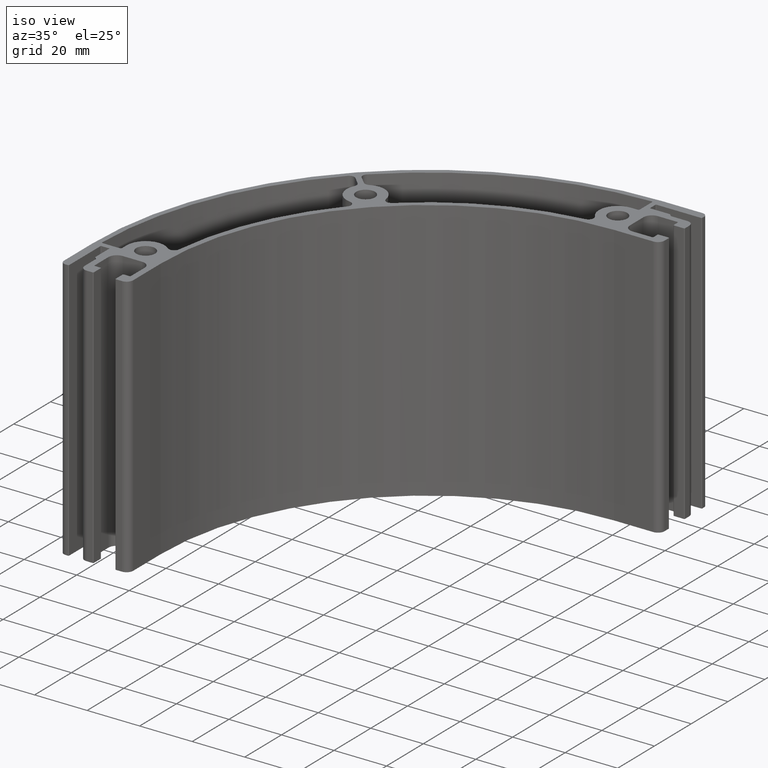
[diagram: clean part render]
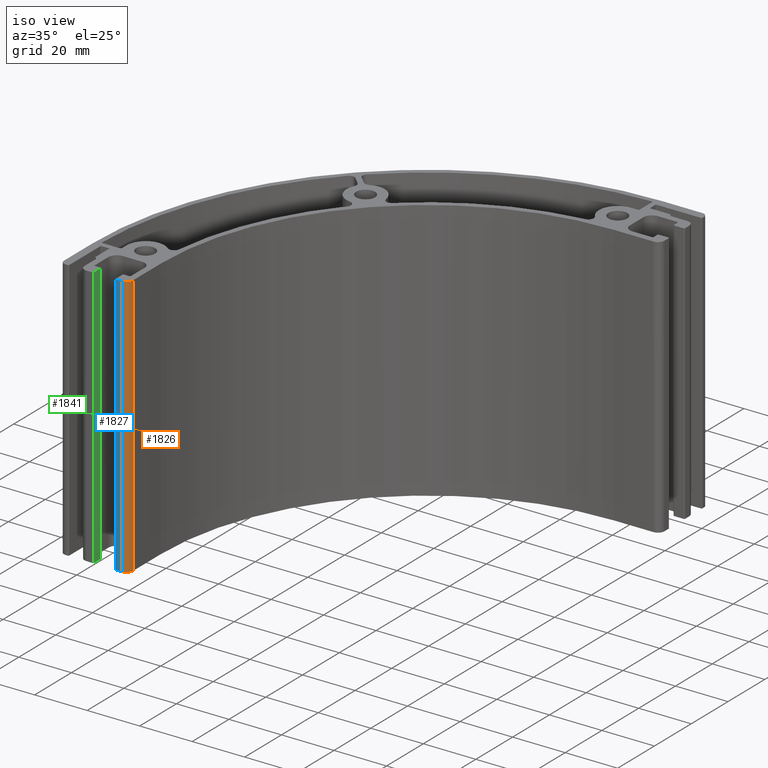
[diagram: same view with three faces highlighted in distinct colors, each labeled with its STEP entity id]
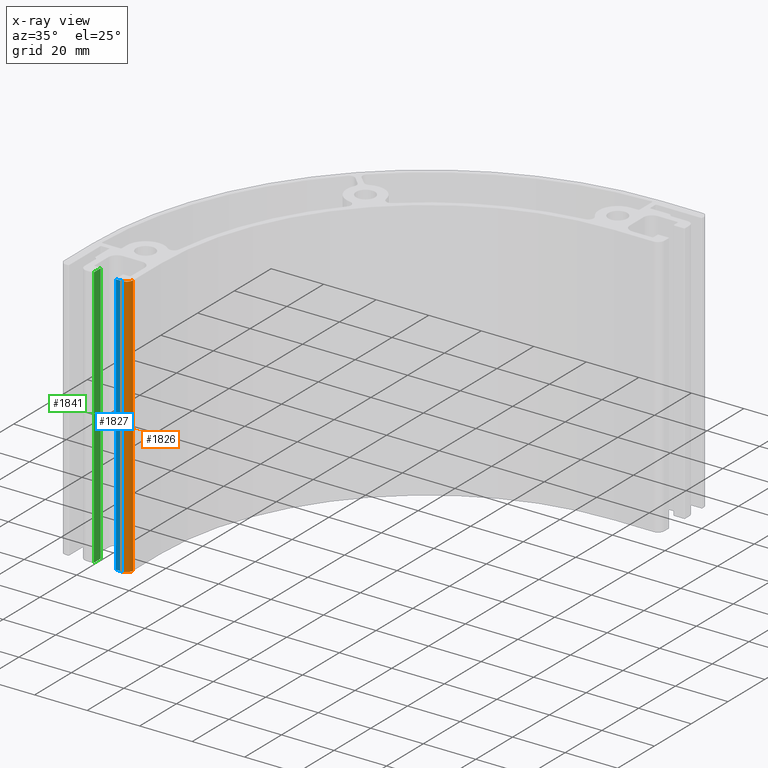
[diagram: x-ray of the same camera — body ghosted, the three highlighted faces saturated]
A machine part, iso view with three faces highlighted in distinct colors.
The next image is the same camera in x-ray (body ghosted, the three faces saturated) — at least one of them is partly hidden behind the body in this view.
Their STEP definitions:

[orange] entity #1826 — the highlighted cylindrical surface (edge-blend (fillet) strip) has radius 2.5 mm, axis along (0, 0, 1).
#98=FACE_OUTER_BOUND('',#193,.T.);
#193=EDGE_LOOP('',(#1308,#1309,#1310,#1311));
#312=LINE('',#2877,#485);
#313=LINE('',#2883,#486);
#485=VECTOR('',#2316,10.);
#486=VECTOR('',#2323,10.);
#661=CIRCLE('',#1990,2.5);
#662=CIRCLE('',#1991,2.5);
#781=VERTEX_POINT('',#2873);
#782=VERTEX_POINT('',#2875);
#783=VERTEX_POINT('',#2879);
#784=VERTEX_POINT('',#2881);
#998=EDGE_CURVE('',#781,#782,#312,.T.);
#999=EDGE_CURVE('',#783,#781,#661,.T.);
#1000=EDGE_CURVE('',#784,#782,#662,.T.);
#1001=EDGE_CURVE('',#783,#784,#313,.T.);
#1308=ORIENTED_EDGE('',*,*,#999,.T.);
#1309=ORIENTED_EDGE('',*,*,#998,.T.);
#1310=ORIENTED_EDGE('',*,*,#1000,.F.);
#1311=ORIENTED_EDGE('',*,*,#1001,.F.);
#1766=CYLINDRICAL_SURFACE('',#1989,2.5);
#1826=ADVANCED_FACE('',(#98),#1766,.T.);
#1989=AXIS2_PLACEMENT_3D('',#2878,#2317,#2318);
#1990=AXIS2_PLACEMENT_3D('',#2880,#2319,#2320);
#1991=AXIS2_PLACEMENT_3D('',#2882,#2321,#2322);
#2316=DIRECTION('',(0.,0.,1.));
#2317=DIRECTION('center_axis',(0.,0.,1.));
#2318=DIRECTION('ref_axis',(0.,-1.,0.));
#2319=DIRECTION('center_axis',(0.,0.,1.));
#2320=DIRECTION('ref_axis',(0.,-1.,0.));
#2321=DIRECTION('center_axis',(0.,0.,1.));
#2322=DIRECTION('ref_axis',(0.,-1.,0.));
#2323=DIRECTION('',(0.,0.,1.));
#2873=CARTESIAN_POINT('',(-23.1081557175748,-93.3918442824252,0.));
#2875=CARTESIAN_POINT('',(-23.1081557175748,-93.3918442824252,100.));
#2877=CARTESIAN_POINT('',(-23.1081557175748,-93.3918442824252,0.));
#2878=CARTESIAN_POINT('Origin',(-25.6081557175748,-93.3918442824252,0.));
#2879=CARTESIAN_POINT('',(-25.6081557175748,-95.8918442824252,0.));
#2880=CARTESIAN_POINT('Origin',(-25.6081557175748,-93.3918442824252,0.));
#2881=CARTESIAN_POINT('',(-25.6081557175748,-95.8918442824252,100.));
#2882=CARTESIAN_POINT('Origin',(-25.6081557175748,-93.3918442824252,100.));
#2883=CARTESIAN_POINT('',(-25.6081557175748,-95.8918442824252,0.));

[blue] entity #1827 — the highlighted planar face has unit normal (0, -1, 0).
#32=PLANE('',#1992);
#99=FACE_OUTER_BOUND('',#194,.T.);
#194=EDGE_LOOP('',(#1312,#1313,#1314,#1315));
#313=LINE('',#2883,#486);
#314=LINE('',#2886,#487);
#315=LINE('',#2888,#488);
#316=LINE('',#2889,#489);
#486=VECTOR('',#2323,10.);
#487=VECTOR('',#2326,10.);
#488=VECTOR('',#2327,10.);
#489=VECTOR('',#2328,10.);
#783=VERTEX_POINT('',#2879);
#784=VERTEX_POINT('',#2881);
#785=VERTEX_POINT('',#2885);
#786=VERTEX_POINT('',#2887);
#1001=EDGE_CURVE('',#783,#784,#313,.T.);
#1002=EDGE_CURVE('',#785,#783,#314,.T.);
#1003=EDGE_CURVE('',#786,#784,#315,.T.);
#1004=EDGE_CURVE('',#785,#786,#316,.T.);
#1312=ORIENTED_EDGE('',*,*,#1002,.T.);
#1313=ORIENTED_EDGE('',*,*,#1001,.T.);
#1314=ORIENTED_EDGE('',*,*,#1003,.F.);
#1315=ORIENTED_EDGE('',*,*,#1004,.F.);
#1827=ADVANCED_FACE('',(#99),#32,.T.);
#1992=AXIS2_PLACEMENT_3D('',#2884,#2324,#2325);
#2323=DIRECTION('',(0.,0.,1.));
#2324=DIRECTION('center_axis',(0.,-1.,0.));
#2325=DIRECTION('ref_axis',(1.,0.,0.));
#2326=DIRECTION('',(1.,0.,0.));
#2327=DIRECTION('',(1.,0.,0.));
#2328=DIRECTION('',(0.,0.,1.));
#2879=CARTESIAN_POINT('',(-25.6081557175748,-95.8918442824252,0.));
#2881=CARTESIAN_POINT('',(-25.6081557175748,-95.8918442824252,100.));
#2883=CARTESIAN_POINT('',(-25.6081557175748,-95.8918442824252,0.));
#2884=CARTESIAN_POINT('Origin',(-27.9081557175748,-95.8918442824252,0.));
#2885=CARTESIAN_POINT('',(-27.9081557175748,-95.8918442824252,0.));
#2886=CARTESIAN_POINT('',(-27.9081557175748,-95.8918442824252,0.));
#2887=CARTESIAN_POINT('',(-27.9081557175748,-95.8918442824252,100.));
#2888=CARTESIAN_POINT('',(-27.9081557175748,-95.8918442824252,100.));
#2889=CARTESIAN_POINT('',(-27.9081557175748,-95.8918442824252,0.));

[green] entity #1841 — the highlighted planar face has unit normal (1, 0, 0).
#39=PLANE('',#2020);
#113=FACE_OUTER_BOUND('',#208,.T.);
#208=EDGE_LOOP('',(#1368,#1369,#1370,#1371));
#341=LINE('',#2967,#514);
#342=LINE('',#2970,#515);
#343=LINE('',#2972,#516);
#344=LINE('',#2973,#517);
#514=VECTOR('',#2407,10.);
#515=VECTOR('',#2410,10.);
#516=VECTOR('',#2411,10.);
#517=VECTOR('',#2412,10.);
#811=VERTEX_POINT('',#2963);
#812=VERTEX_POINT('',#2965);
#813=VERTEX_POINT('',#2969);
#814=VERTEX_POINT('',#2971);
#1043=EDGE_CURVE('',#811,#812,#341,.T.);
#1044=EDGE_CURVE('',#813,#811,#342,.T.);
#1045=EDGE_CURVE('',#814,#812,#343,.T.);
#1046=EDGE_CURVE('',#813,#814,#344,.T.);
#1368=ORIENTED_EDGE('',*,*,#1044,.T.);
#1369=ORIENTED_EDGE('',*,*,#1043,.T.);
#1370=ORIENTED_EDGE('',*,*,#1045,.F.);
#1371=ORIENTED_EDGE('',*,*,#1046,.F.);
#1841=ADVANCED_FACE('',(#113),#39,.T.);
#2020=AXIS2_PLACEMENT_3D('',#2968,#2408,#2409);
#2407=DIRECTION('',(0.,0.,1.));
#2408=DIRECTION('center_axis',(1.,0.,0.));
#2409=DIRECTION('ref_axis',(0.,1.,0.));
#2410=DIRECTION('',(0.,1.,0.));
#2411=DIRECTION('',(0.,1.,0.));
#2412=DIRECTION('',(0.,0.,1.));
#2963=CARTESIAN_POINT('',(-36.5081557175748,-91.8918442824252,0.));
#2965=CARTESIAN_POINT('',(-36.5081557175748,-91.8918442824252,100.));
#2967=CARTESIAN_POINT('',(-36.5081557175748,-91.8918442824252,0.));
#2968=CARTESIAN_POINT('Origin',(-36.5081557175748,-95.5918442824252,0.));
#2969=CARTESIAN_POINT('',(-36.5081557175748,-95.5918442824252,0.));
#2970=CARTESIAN_POINT('',(-36.5081557175748,-95.5918442824252,0.));
#2971=CARTESIAN_POINT('',(-36.5081557175748,-95.5918442824252,100.));
#2972=CARTESIAN_POINT('',(-36.5081557175748,-95.5918442824252,100.));
#2973=CARTESIAN_POINT('',(-36.5081557175748,-95.5918442824252,0.));